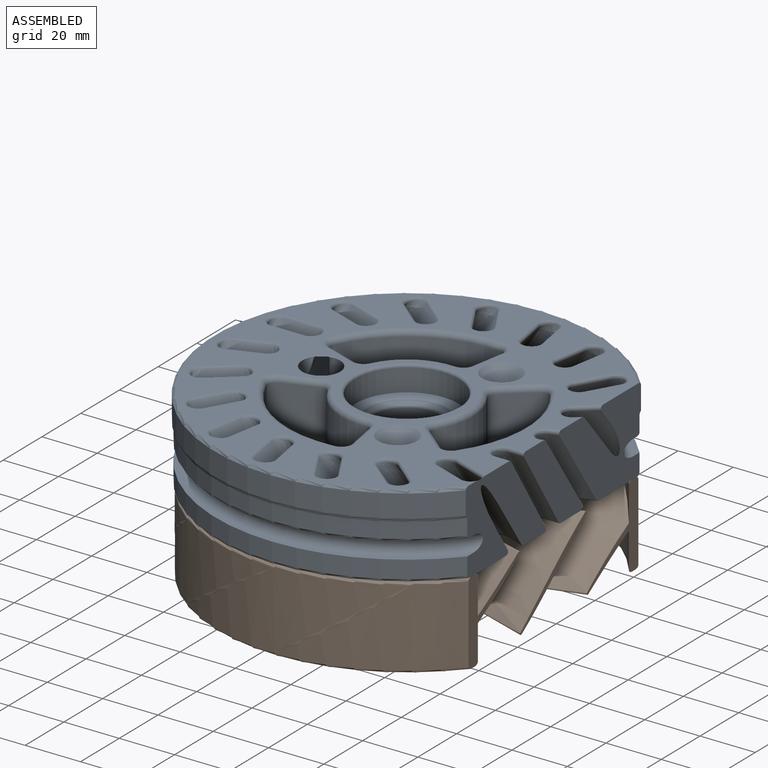
[diagram: assembled view]
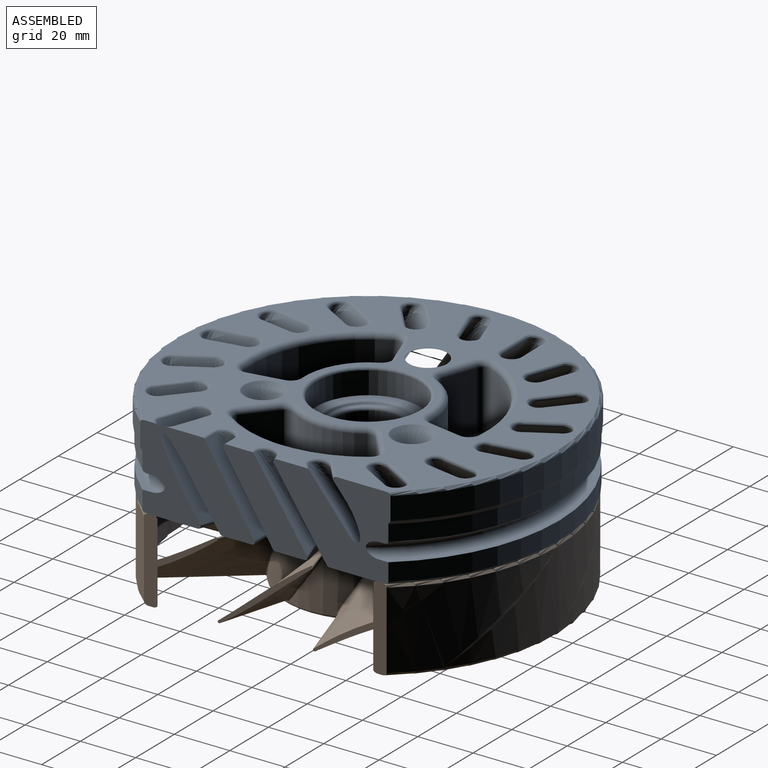
[diagram: assembled view, second angle]
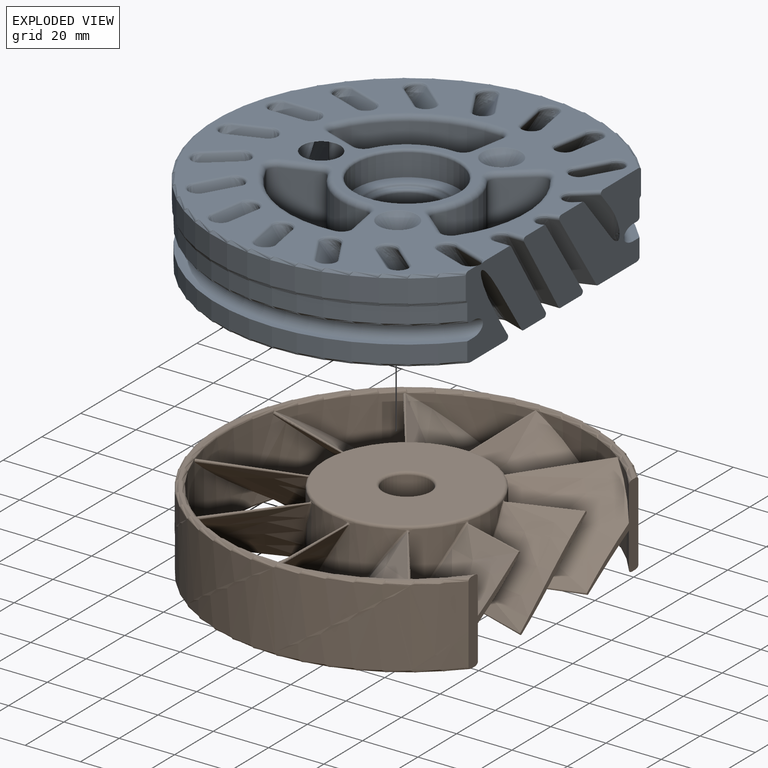
[diagram: exploded view]
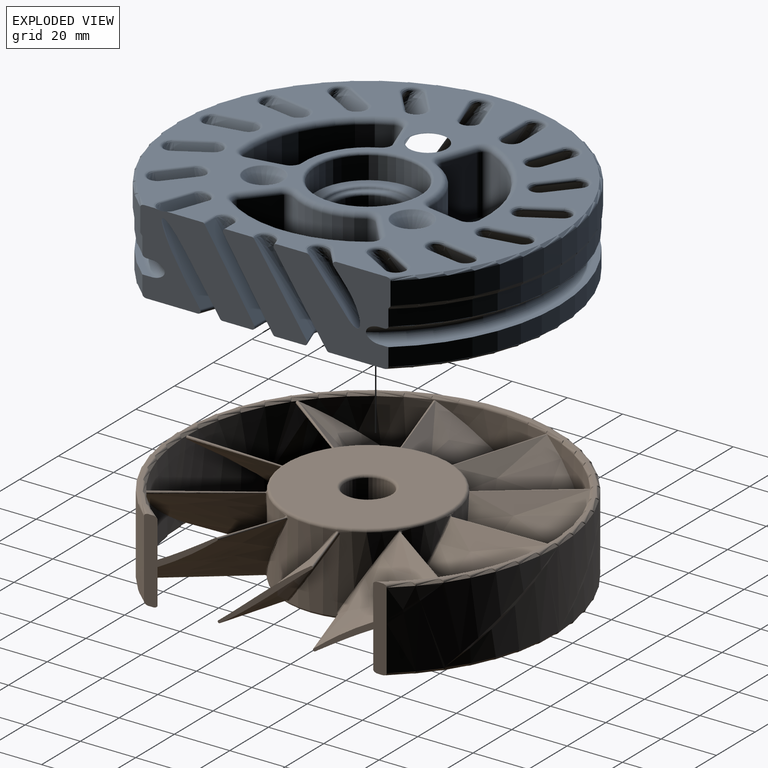
[diagram: exploded view, second angle]
ASSEMBLY  parts=2 mates=2
PART A: 320 faces, bbox 137.9x151.6x31.1 mm
  f0: plane 137.38x121.69mm, normal (0,0,1), area 6280.2mm2, adj f6,f7,f10,f11,f16,f17,f23,f26
  f1: plane 136.38x121.19mm, normal (0,0,-1), area 10557.1mm2, adj f12,f13,f18,f19,f24,f25,f32,f56
  f2: cylinder r=69.69mm len=139.38mm, axis (0,0,-1), area 2760.5mm2, adj f26,f33,f317,f318
  f3: plane 28.28x21.52mm, normal (-0.54,0.65,0.54), area 319.4mm2, adj f5,f7,f132,f136,f317
  f4: plane 28.28x21.52mm, normal (0.54,-0.65,-0.54), area 394.7mm2, adj f5,f6,f132,f135,f317
  f5: extruded ~22.36x16.21mm, area 140.7mm2, adj f3,f4,f137,f317
  f6: cylinder r=1.01mm len=8.07mm, axis (-0.77,-0.64,0), area 20.1mm2, adj f0,f4,f133,f317
  f7: cylinder r=1.01mm len=3.09mm, axis (0.77,0.64,0), area 3mm2, adj f0,f3,f133,f317
  f8: plane 28.28x19.39mm, normal (-0.29,0.79,0.54), area 141mm2, adj f11,f13,f138,f319
  f9: plane 28.28x20.23mm, normal (0.29,-0.79,-0.54), area 223.1mm2, adj f10,f12,f138,f317
  f10: cylinder r=1.01mm len=3.84mm, axis (-0.94,-0.34,0), area 7.7mm2, adj f0,f9,f139,f317
  f11: cylinder r=1.01mm len=1.18mm, axis (0.94,0.34,0), area 0.8mm2, adj f0,f8,f139,f319
  f12: cylinder r=1.01mm len=9.91mm, axis (0.94,0.34,0), area 10.2mm2, adj f1,f9,f140,f317
  f13: cylinder r=1.01mm len=7.37mm, axis (-0.94,-0.34,0), area 15.8mm2, adj f1,f8,f140,f319
  f14: plane 28.28x17.92mm, normal (0,0.84,0.54), area 185.1mm2, adj f17,f19,f141,f318
  f15: plane 28.28x17.92mm, normal (0,-0.84,-0.54), area 185.1mm2, adj f16,f18,f141,f319
  f16: cylinder r=1.01mm len=5.53mm, axis (-1,0,0), area 11.9mm2, adj f0,f15,f142,f319
  f17: cylinder r=1.01mm len=5.53mm, axis (1,0,0), area 5.6mm2, adj f0,f14,f142,f318
  f18: cylinder r=1.01mm len=5.53mm, axis (1,0,0), area 5.6mm2, adj f1,f15,f143,f319
  f19: cylinder r=1.01mm len=5.53mm, axis (-1,0,0), area 11.9mm2, adj f1,f14,f143,f318
  f20: plane 28.28x20.98mm, normal (0.29,0.79,0.54), area 398.1mm2, adj f22,f25,f144,f147,f318
  f21: plane 28.28x20.98mm, normal (-0.29,-0.79,-0.54), area 360.8mm2, adj f22,f24,f144,f145,f318
  f22: extruded ~20.79x18.25mm, area 76.6mm2, adj f20,f21,f23,f318
  f23: bspline ~8.25x6.3mm, area 14.9mm2, adj f0,f22,f145,f147,f318
  f24: cylinder r=1.01mm len=7.75mm, axis (0.94,-0.34,0), area 7.9mm2, adj f1,f21,f148,f318
  f25: cylinder r=1.01mm len=10.4mm, axis (-0.94,0.34,0), area 22.7mm2, adj f1,f20,f148,f318
  f26: torus R=68.69mm, axis (0,0,1), area 532.2mm2, adj f0,f2,f317,f318
  f27: cylinder r=69.19mm len=138.38mm, axis (0,0,1), area 2180.9mm2, adj f28,f32,f317,f318
  f28: plane 138.38x122.19mm, normal (0,0,1), area 688mm2, adj f27,f29,f317,f318
  f29: torus R=67.14mm, axis (0,0,1), area 2944.3mm2, adj f28,f30,f317,f318
  f30: plane 136.38x121.19mm, normal (0,0,-1), area 351.1mm2, adj f29,f34,f317,f318
  f31: cylinder r=69.19mm len=138.38mm, axis (0,0,1), area 1925mm2, adj f34,f35,f317,f318
  f32: torus R=68.19mm, axis (0,0,1), area 530.2mm2, adj f1,f27,f317,f318
  f33: torus R=68.69mm, axis (0,0,-1), area 245.2mm2, adj f2,f35,f317,f318
  f34: torus R=68.19mm, axis (0,0,1), area 530.2mm2, adj f30,f31,f317,f318
  f35: torus R=70.19mm, axis (0,0,-1), area 244.5mm2, adj f31,f33,f317,f318
  f36: torus R=7.21mm, axis (0,0,1), area 17.3mm2, adj f0,f37
  f37: cone r=7mm half-angle=45deg, axis (0,0,1), area 180.9mm2, adj f36,f39
  f38: plane 5x5mm, normal (0,0,1), area 19.6mm2, adj f39
  f39: cylinder r=2.5mm len=22.5mm, axis (0,0,-1), area 353.4mm2, adj f37,f38
  f40: torus R=7.21mm, axis (0,0,1), area 17.3mm2, adj f0,f41
  f41: cone r=7mm half-angle=45deg, axis (0,0,1), area 180.9mm2, adj f40,f43
  f42: plane 5x5mm, normal (0,0,1), area 19.6mm2, adj f43
  f43: cylinder r=2.5mm len=22.5mm, axis (0,0,-1), area 353.4mm2, adj f41,f42
  f44: plane 37.37x37.37mm, normal (0,0,1), area 376.7mm2, adj f45,f239
  f45: cylinder r=18.68mm len=37.37mm, axis (0,0,-1), area 949.8mm2, adj f44,f240
  f46: cylinder r=12.12mm len=24.24mm, axis (0,0,-1), area 1386mm2, adj f237,f238
  f47: plane 26.8x26.8mm, normal (0,0,1), area 23.5mm2, adj f238,f241
  f48: extruded ~29.36x24.66mm, area 294.5mm2, adj f49,f50,f54,f56
  f49: plane 28.28x17.92mm, normal (0,-0.84,0.54), area 405.8mm2, adj f48,f51,f55,f58
  f50: plane 28.28x17.92mm, normal (0,0.84,-0.54), area 405.8mm2, adj f48,f51,f52,f57
  f51: extruded ~29.36x24.66mm, area 294.5mm2, adj f49,f50,f53,f59
  f52: cylinder r=1.01mm len=12.12mm, axis (1,0,0), area 26.1mm2, adj f0,f50,f53,f54
  f53: bspline ~8.45x4.92mm, area 17.4mm2, adj f0,f51,f52,f55
  f54: bspline ~8.45x4.92mm, area 17.4mm2, adj f0,f48,f52,f55
  f55: cylinder r=1.01mm len=12.12mm, axis (-1,0,0), area 12.3mm2, adj f0,f49,f53,f54
  f56: bspline ~8.45x4.92mm, area 17.4mm2, adj f1,f48,f57,f58
  f57: cylinder r=1.01mm len=12.12mm, axis (-1,0,0), area 12.3mm2, adj f1,f50,f56,f59
  f58: cylinder r=1.01mm len=12.12mm, axis (1,0,0), area 26.1mm2, adj f1,f49,f56,f59
  f59: bspline ~8.45x4.92mm, area 17.4mm2, adj f1,f51,f57,f58
  f60: extruded ~29.36x23.36mm, area 294.5mm2, adj f61,f62,f66,f68
  f61: plane 28.28x20.98mm, normal (-0.29,-0.79,0.54), area 405.8mm2, adj f60,f63,f67,f70
  f62: plane 28.28x20.98mm, normal (0.29,0.79,-0.54), area 405.8mm2, adj f60,f63,f64,f69
  f63: extruded ~29.36x23.36mm, area 294.5mm2, adj f61,f62,f65,f71
  f64: cylinder r=1.01mm len=11.73mm, axis (0.94,-0.34,0), area 26.1mm2, adj f0,f62,f65,f66
  f65: bspline ~8.25x6.3mm, area 17.4mm2, adj f0,f63,f64,f67
  f66: bspline ~8.25x6.3mm, area 17.4mm2, adj f0,f60,f64,f67
  f67: cylinder r=1.01mm len=11.68mm, axis (-0.94,0.34,0), area 12.3mm2, adj f0,f61,f65,f66
  f68: bspline ~8.39x6.3mm, area 17.4mm2, adj f1,f60,f69,f70
  f69: cylinder r=1.01mm len=11.68mm, axis (-0.94,0.34,0), area 12.3mm2, adj f1,f62,f68,f71
  f70: cylinder r=1.01mm len=11.73mm, axis (0.94,-0.34,0), area 26.1mm2, adj f1,f61,f68,f71
  f71: bspline ~8.39x6.3mm, area 17.4mm2, adj f1,f63,f69,f70
  f72: extruded ~29.36x19.6mm, area 294.5mm2, adj f73,f74,f78,f80
  f73: plane 28.28x21.52mm, normal (-0.54,-0.65,0.54), area 405.8mm2, adj f72,f75,f79,f82
  f74: plane 28.28x21.52mm, normal (0.54,0.65,-0.54), area 405.8mm2, adj f72,f75,f76,f81
  f75: extruded ~29.36x19.6mm, area 294.5mm2, adj f73,f74,f77,f83
  f76: cylinder r=1.01mm len=9.93mm, axis (0.77,-0.64,0), area 26.1mm2, adj f0,f74,f77,f78
  f77: bspline ~7.88x7.45mm, area 17.4mm2, adj f0,f75,f76,f79
  f78: bspline ~7.88x7.45mm, area 17.4mm2, adj f0,f72,f76,f79
  f79: cylinder r=1.01mm len=9.83mm, axis (-0.77,0.64,0), area 12.3mm2, adj f0,f73,f77,f78
  f80: bspline ~7.89x7.01mm, area 17.4mm2, adj f1,f72,f81,f82
  f81: cylinder r=1.01mm len=9.83mm, axis (-0.77,0.64,0), area 12.3mm2, adj f1,f74,f80,f83
  f82: cylinder r=1.01mm len=9.93mm, axis (0.77,-0.64,0), area 26.1mm2, adj f1,f73,f80,f83
  f83: bspline ~7.89x7.45mm, area 17.4mm2, adj f1,f75,f81,f82
  f84: extruded ~29.36x21.76mm, area 294.5mm2, adj f85,f86,f90,f92
  f85: plane 28.28x21.58mm, normal (-0.73,-0.42,0.54), area 405.8mm2, adj f84,f87,f91,f94
  f86: plane 28.28x21.58mm, normal (0.73,0.42,-0.54), area 405.8mm2, adj f84,f87,f88,f93
  f87: extruded ~29.36x21.76mm, area 294.5mm2, adj f85,f86,f89,f95
  f88: cylinder r=1.01mm len=11mm, axis (0.5,-0.87,0), area 26.1mm2, adj f0,f86,f89,f90
  f89: bspline ~8.2x6.92mm, area 17.4mm2, adj f0,f87,f88,f91
  f90: bspline ~8.2x6.92mm, area 17.4mm2, adj f0,f84,f88,f91
  f91: cylinder r=1.01mm len=10.92mm, axis (-0.5,0.87,0), area 12.3mm2, adj f0,f85,f89,f90
  f92: bspline ~7.96x6.92mm, area 17.4mm2, adj f1,f84,f93,f94
  f93: cylinder r=1.01mm len=10.92mm, axis (-0.5,0.87,0), area 12.3mm2, adj f1,f86,f92,f95
  f94: cylinder r=1.01mm len=11mm, axis (0.5,-0.87,0), area 26.1mm2, adj f1,f85,f92,f95
  f95: bspline ~7.96x6.92mm, area 17.4mm2, adj f1,f87,f93,f94
  f96: extruded ~29.36x24.33mm, area 294.5mm2, adj f97,f98,f102,f104
  f97: plane 28.28x19.75mm, normal (-0.83,-0.15,0.54), area 405.8mm2, adj f96,f99,f103,f106
  f98: plane 28.28x19.75mm, normal (0.83,0.15,-0.54), area 405.8mm2, adj f96,f99,f100,f105
  f99: extruded ~29.36x24.33mm, area 294.5mm2, adj f97,f98,f101,f107
  f100: cylinder r=1.01mm len=12.11mm, axis (0.17,-0.98,0), area 26.1mm2, adj f0,f98,f101,f102
  f101: bspline ~8.45x5.63mm, area 17.4mm2, adj f0,f99,f100,f103
  f102: bspline ~8.45x5.63mm, area 17.4mm2, adj f0,f96,f100,f103
  f103: cylinder r=1.01mm len=12.08mm, axis (-0.17,0.98,0), area 12.3mm2, adj f0,f97,f101,f102
  f104: bspline ~8.44x5.63mm, area 17.4mm2, adj f1,f96,f105,f106
  f105: cylinder r=1.01mm len=12.08mm, axis (-0.17,0.98,0), area 12.3mm2, adj f1,f98,f104,f107
  f106: cylinder r=1.01mm len=12.11mm, axis (0.17,-0.98,0), area 26.1mm2, adj f1,f97,f104,f107
  f107: bspline ~8.42x5.63mm, area 17.4mm2, adj f1,f99,f105,f106
  f108: extruded ~29.36x24.33mm, area 294.5mm2, adj f109,f110,f114,f116
  f109: plane 28.28x19.75mm, normal (-0.83,0.15,0.54), area 405.8mm2, adj f108,f111,f115,f118
  f110: plane 28.28x19.75mm, normal (0.83,-0.15,-0.54), area 405.8mm2, adj f108,f111,f112,f117
  f111: extruded ~29.36x24.33mm, area 294.5mm2, adj f109,f110,f113,f119
  f112: cylinder r=1.01mm len=12.11mm, axis (-0.17,-0.98,0), area 26.1mm2, adj f0,f110,f113,f114
  f113: bspline ~8.44x5.63mm, area 17.4mm2, adj f0,f111,f112,f115
  f114: bspline ~8.42x5.63mm, area 17.4mm2, adj f0,f108,f112,f115
  f115: cylinder r=1.01mm len=12.08mm, axis (0.17,0.98,0), area 12.3mm2, adj f0,f109,f113,f114
  f116: bspline ~8.45x5.63mm, area 17.4mm2, adj f1,f108,f117,f118
  f117: cylinder r=1.01mm len=12.08mm, axis (0.17,0.98,0), area 12.3mm2, adj f1,f110,f116,f119
  f118: cylinder r=1.01mm len=12.11mm, axis (-0.17,-0.98,0), area 26.1mm2, adj f1,f109,f116,f119
  f119: bspline ~8.45x5.63mm, area 17.4mm2, adj f1,f111,f117,f118
  f120: extruded ~29.36x21.76mm, area 294.5mm2, adj f121,f122,f126,f128
  f121: plane 28.28x21.58mm, normal (-0.73,0.42,0.54), area 405.8mm2, adj f120,f123,f127,f130
  f122: plane 28.28x21.58mm, normal (0.73,-0.42,-0.54), area 405.8mm2, adj f120,f123,f124,f129
  f123: extruded ~29.36x21.76mm, area 294.5mm2, adj f121,f122,f125,f131
  f124: cylinder r=1.01mm len=11mm, axis (-0.5,-0.87,0), area 26.1mm2, adj f0,f122,f125,f126
  f125: bspline ~8.2x6.92mm, area 17.4mm2, adj f0,f123,f124,f127
  f126: bspline ~8.2x6.92mm, area 17.4mm2, adj f0,f120,f124,f127
  f127: cylinder r=1.01mm len=10.92mm, axis (0.5,0.87,0), area 12.3mm2, adj f0,f121,f125,f126
  f128: bspline ~8.2x6.92mm, area 17.4mm2, adj f1,f120,f129,f130
  f129: cylinder r=1.01mm len=10.92mm, axis (0.5,0.87,0), area 12.3mm2, adj f1,f122,f128,f131
  f130: cylinder r=1.01mm len=11mm, axis (-0.5,-0.87,0), area 26.1mm2, adj f1,f121,f128,f131
  f131: bspline ~8.2x6.92mm, area 17.4mm2, adj f1,f123,f129,f130
  f132: extruded ~29.36x19.6mm, area 294.5mm2, adj f3,f4,f133,f134
  f133: bspline ~7.89x7.45mm, area 17.4mm2, adj f0,f6,f7,f132
  f134: bspline ~7.54x7.45mm, area 17.4mm2, adj f1,f132,f135,f136
  f135: cylinder r=1.01mm len=9.83mm, axis (0.77,0.64,0), area 12.3mm2, adj f1,f4,f134,f137
  f136: cylinder r=1.01mm len=9.93mm, axis (-0.77,-0.64,0), area 26.1mm2, adj f1,f3,f134,f137
  f137: bspline ~7.54x7.45mm, area 17.4mm2, adj f1,f5,f135,f136
  f138: extruded ~29.36x23.36mm, area 294.5mm2, adj f8,f9,f139,f140
  f139: bspline ~8.39x6.3mm, area 17.4mm2, adj f0,f10,f11,f138
  f140: bspline ~8.25x6.3mm, area 17.4mm2, adj f1,f12,f13,f138
  f141: extruded ~29.36x24.66mm, area 294.5mm2, adj f14,f15,f142,f143
  f142: bspline ~8.45x4.92mm, area 17.4mm2, adj f0,f16,f17,f141
  f143: bspline ~8.45x4.92mm, area 17.4mm2, adj f1,f18,f19,f141
  f144: extruded ~29.36x23.36mm, area 294.5mm2, adj f20,f21,f146,f148
  f145: cylinder r=1.01mm len=11.73mm, axis (-0.94,0.34,0), area 26.1mm2, adj f0,f21,f23,f146
  f146: bspline ~8.25x6.3mm, area 17.4mm2, adj f0,f144,f145,f147
  f147: cylinder r=1.01mm len=11.68mm, axis (0.94,-0.34,0), area 12.3mm2, adj f0,f20,f23,f146
  f148: bspline ~8.39x6.3mm, area 17.4mm2, adj f1,f24,f25,f144
  f149: extruded ~29.36x19.6mm, area 294.5mm2, adj f150,f151,f155,f157
  f150: plane 28.28x21.52mm, normal (0.54,0.65,0.54), area 405.8mm2, adj f149,f152,f156,f159
  f151: plane 28.28x21.52mm, normal (-0.54,-0.65,-0.54), area 405.8mm2, adj f149,f152,f153,f158
  f152: extruded ~29.36x19.6mm, area 294.5mm2, adj f150,f151,f154,f160
  f153: cylinder r=1.01mm len=9.93mm, axis (-0.77,0.64,0), area 26.1mm2, adj f0,f151,f154,f155
  f154: bspline ~7.88x7.45mm, area 17.4mm2, adj f0,f152,f153,f156
  f155: bspline ~7.88x7.45mm, area 17.4mm2, adj f0,f149,f153,f156
  f156: cylinder r=1.01mm len=9.83mm, axis (0.77,-0.64,0), area 12.3mm2, adj f0,f150,f154,f155
  f157: bspline ~7.89x7.01mm, area 17.4mm2, adj f1,f149,f158,f159
  f158: cylinder r=1.01mm len=9.83mm, axis (0.77,-0.64,0), area 12.3mm2, adj f1,f151,f157,f160
  f159: cylinder r=1.01mm len=9.93mm, axis (-0.77,0.64,0), area 26.1mm2, adj f1,f150,f157,f160
  f160: bspline ~7.89x7.45mm, area 17.4mm2, adj f1,f152,f158,f159
  f161: extruded ~29.36x21.76mm, area 294.5mm2, adj f162,f163,f167,f169
  f162: plane 28.28x21.58mm, normal (0.73,0.42,0.54), area 405.8mm2, adj f161,f164,f168,f171
  f163: plane 28.28x21.58mm, normal (-0.73,-0.42,-0.54), area 405.8mm2, adj f161,f164,f165,f170
  f164: extruded ~29.36x21.76mm, area 294.5mm2, adj f162,f163,f166,f172
  f165: cylinder r=1.01mm len=11mm, axis (-0.5,0.87,0), area 26.1mm2, adj f0,f163,f166,f167
  f166: bspline ~8.2x6.92mm, area 17.4mm2, adj f0,f164,f165,f168
  f167: bspline ~8.2x6.92mm, area 17.4mm2, adj f0,f161,f165,f168
  f168: cylinder r=1.01mm len=10.92mm, axis (0.5,-0.87,0), area 12.3mm2, adj f0,f162,f166,f167
  f169: bspline ~8.2x6.92mm, area 17.4mm2, adj f1,f161,f170,f171
  f170: cylinder r=1.01mm len=10.92mm, axis (0.5,-0.87,0), area 12.3mm2, adj f1,f163,f169,f172
  f171: cylinder r=1.01mm len=11mm, axis (-0.5,0.87,0), area 26.1mm2, adj f1,f162,f169,f172
  f172: bspline ~8.2x6.92mm, area 17.4mm2, adj f1,f164,f170,f171
  f173: extruded ~29.36x24.33mm, area 294.5mm2, adj f174,f175,f179,f181
  f174: plane 28.28x19.75mm, normal (0.83,0.15,0.54), area 405.8mm2, adj f173,f176,f180,f183
  f175: plane 28.28x19.75mm, normal (-0.83,-0.15,-0.54), area 405.8mm2, adj f173,f176,f177,f182
  f176: extruded ~29.36x24.33mm, area 294.5mm2, adj f174,f175,f178,f184
  f177: cylinder r=1.01mm len=12.11mm, axis (-0.17,0.98,0), area 26.1mm2, adj f0,f175,f178,f179
  f178: bspline ~8.45x5.63mm, area 17.4mm2, adj f0,f176,f177,f180
  f179: bspline ~8.45x5.63mm, area 17.4mm2, adj f0,f173,f177,f180
  f180: cylinder r=1.01mm len=12.08mm, axis (0.17,-0.98,0), area 12.3mm2, adj f0,f174,f178,f179
  f181: bspline ~8.44x5.63mm, area 17.4mm2, adj f1,f173,f182,f183
  f182: cylinder r=1.01mm len=12.08mm, axis (0.17,-0.98,0), area 12.3mm2, adj f1,f175,f181,f184
  f183: cylinder r=1.01mm len=12.11mm, axis (-0.17,0.98,0), area 26.1mm2, adj f1,f174,f181,f184
  f184: bspline ~8.42x5.63mm, area 17.4mm2, adj f1,f176,f182,f183
  f185: extruded ~29.36x24.33mm, area 294.5mm2, adj f186,f187,f191,f193
  f186: plane 28.28x19.75mm, normal (0.83,-0.15,0.54), area 405.8mm2, adj f185,f188,f192,f195
  f187: plane 28.28x19.75mm, normal (-0.83,0.15,-0.54), area 405.8mm2, adj f185,f188,f189,f194
  f188: extruded ~29.36x24.33mm, area 294.5mm2, adj f186,f187,f190,f196
  f189: cylinder r=1.01mm len=12.11mm, axis (0.17,0.98,0), area 26.1mm2, adj f0,f187,f190,f191
  f190: bspline ~8.44x5.63mm, area 17.4mm2, adj f0,f188,f189,f192
  f191: bspline ~8.44x5.63mm, area 17.4mm2, adj f0,f185,f189,f192
  f192: cylinder r=1.01mm len=12.08mm, axis (-0.17,-0.98,0), area 12.3mm2, adj f0,f186,f190,f191
  f193: bspline ~8.45x5.63mm, area 17.4mm2, adj f1,f185,f194,f195
  f194: cylinder r=1.01mm len=12.08mm, axis (-0.17,-0.98,0), area 12.3mm2, adj f1,f187,f193,f196
  f195: cylinder r=1.01mm len=12.11mm, axis (0.17,0.98,0), area 26.1mm2, adj f1,f186,f193,f196
  f196: bspline ~8.45x5.63mm, area 17.4mm2, adj f1,f188,f194,f195
  f197: extruded ~29.36x21.76mm, area 294.5mm2, adj f198,f199,f203,f205
  f198: plane 28.28x21.58mm, normal (0.73,-0.42,0.54), area 405.8mm2, adj f197,f200,f204,f207
  f199: plane 28.28x21.58mm, normal (-0.73,0.42,-0.54), area 405.8mm2, adj f197,f200,f201,f206
  f200: extruded ~29.36x21.76mm, area 294.5mm2, adj f198,f199,f202,f208
  f201: cylinder r=1.01mm len=11mm, axis (0.5,0.87,0), area 26.1mm2, adj f0,f199,f202,f203
  f202: bspline ~7.96x6.92mm, area 17.4mm2, adj f0,f200,f201,f204
  f203: bspline ~7.96x6.92mm, area 17.4mm2, adj f0,f197,f201,f204
  f204: cylinder r=1.01mm len=10.92mm, axis (-0.5,-0.87,0), area 12.3mm2, adj f0,f198,f202,f203
  f205: bspline ~8.2x6.92mm, area 17.4mm2, adj f1,f197,f206,f207
  f206: cylinder r=1.01mm len=10.92mm, axis (-0.5,-0.87,0), area 12.3mm2, adj f1,f199,f205,f208
  f207: cylinder r=1.01mm len=11mm, axis (0.5,0.87,0), area 26.1mm2, adj f1,f198,f205,f208
  f208: bspline ~8.2x6.92mm, area 17.4mm2, adj f1,f200,f206,f207
  f209: extruded ~29.36x19.6mm, area 294.5mm2, adj f210,f211,f215,f217
  f210: plane 28.28x21.52mm, normal (0.54,-0.65,0.54), area 405.8mm2, adj f209,f212,f216,f219
  f211: plane 28.28x21.52mm, normal (-0.54,0.65,-0.54), area 405.8mm2, adj f209,f212,f213,f218
  f212: extruded ~29.36x19.6mm, area 294.5mm2, adj f210,f211,f214,f220
  f213: cylinder r=1.01mm len=9.93mm, axis (0.77,0.64,0), area 26.1mm2, adj f0,f211,f214,f215
  f214: bspline ~7.89x7.45mm, area 17.4mm2, adj f0,f212,f213,f216
  f215: bspline ~7.89x7.45mm, area 17.4mm2, adj f0,f209,f213,f216
  f216: cylinder r=1.01mm len=9.83mm, axis (-0.77,-0.64,0), area 12.3mm2, adj f0,f210,f214,f215
  f217: bspline ~7.54x7.45mm, area 17.4mm2, adj f1,f209,f218,f219
  f218: cylinder r=1.01mm len=9.83mm, axis (-0.77,-0.64,0), area 12.3mm2, adj f1,f211,f217,f220
  f219: cylinder r=1.01mm len=9.93mm, axis (0.77,0.64,0), area 26.1mm2, adj f1,f210,f217,f220
  f220: bspline ~7.54x7.45mm, area 17.4mm2, adj f1,f212,f218,f219
  f221: extruded ~29.36x23.36mm, area 294.5mm2, adj f222,f223,f227,f229
  f222: plane 28.28x20.98mm, normal (0.29,-0.79,0.54), area 405.8mm2, adj f221,f224,f228,f231
  f223: plane 28.28x20.98mm, normal (-0.29,0.79,-0.54), area 405.8mm2, adj f221,f224,f225,f230
  f224: extruded ~29.36x23.36mm, area 294.5mm2, adj f222,f223,f226,f232
  f225: cylinder r=1.01mm len=11.73mm, axis (0.94,0.34,0), area 26.1mm2, adj f0,f223,f226,f227
  f226: bspline ~8.39x6.3mm, area 17.4mm2, adj f0,f224,f225,f228
  f227: bspline ~8.39x6.3mm, area 17.4mm2, adj f0,f221,f225,f228
  f228: cylinder r=1.01mm len=11.68mm, axis (-0.94,-0.34,0), area 12.3mm2, adj f0,f222,f226,f227
  f229: bspline ~8.39x6.3mm, area 17.4mm2, adj f1,f221,f230,f231
  f230: cylinder r=1.01mm len=11.68mm, axis (-0.94,-0.34,0), area 12.3mm2, adj f1,f223,f229,f232
  f231: cylinder r=1.01mm len=11.73mm, axis (0.94,0.34,0), area 26.1mm2, adj f1,f222,f229,f232
  f232: bspline ~8.39x6.3mm, area 17.4mm2, adj f1,f224,f230,f231
  f233: plane 5x5mm, normal (0,0,1), area 19.6mm2, adj f234
  f234: cylinder r=2.5mm len=22.5mm, axis (0,0,-1), area 353.4mm2, adj f233,f235
  f235: cone r=7mm half-angle=45deg, axis (0,0,1), area 180.9mm2, adj f234,f236
  f236: torus R=7.21mm, axis (0,0,1), area 17.3mm2, adj f0,f235
  f237: torus R=13.12mm, axis (0,0,1), area 123.2mm2, adj f1,f46
  f238: torus R=13.12mm, axis (0,0,-1), area 123.2mm2, adj f46,f47
  f239: torus R=15.14mm, axis (0,0,-1), area 97mm2, adj f44,f241
  f240: torus R=19.69mm, axis (0,0,1), area 188mm2, adj f0,f45
  f241: torus R=13.4mm, axis (0,0,1), area 91.8mm2, adj f47,f239
  f242: plane 48.04x19.18mm, normal (0,0,1), area 621mm2, adj f309,f310,f311,f312,f313,f314,f315,f316
  f243: plane 21.3x9.78mm, normal (0.64,-0.77,0), area 271.8mm2, adj f249,f250,f279,f315
  f244: cylinder r=42.5mm len=49.53mm, axis (0,0,1), area 1126.3mm2, adj f247,f249,f283,f314
  f245: cylinder r=23.79mm len=26.31mm, axis (0,0,1), area 593.9mm2, adj f248,f250,f278,f311
  f246: plane 21.3x9.78mm, normal (0.64,0.77,0), area 271.8mm2, adj f247,f248,f282,f310
  f247: cylinder r=3mm len=21.3mm, axis (0,0,1), area 105.2mm2, adj f244,f246,f284,f312
  f248: cylinder r=3mm len=21.3mm, axis (0,0,1), area 93.2mm2, adj f245,f246,f280,f309
  f249: cylinder r=3mm len=21.3mm, axis (0,0,1), area 105.2mm2, adj f243,f244,f281,f316
  f250: cylinder r=3mm len=21.3mm, axis (0,0,1), area 93.2mm2, adj f243,f245,f277,f313
  f251: plane 41.87x29.58mm, normal (0,0,1), area 621mm2, adj f293,f294,f295,f296,f297,f298,f299,f300
  f252: plane 21.3x12.57mm, normal (-0.98,-0.17,0), area 271.8mm2, adj f258,f259,f290,f296
  f253: cylinder r=42.5mm len=42.9mm, axis (0,0,1), area 1126.3mm2, adj f256,f258,f286,f300
  f254: cylinder r=23.79mm len=22.79mm, axis (0,0,1), area 593.9mm2, adj f257,f259,f291,f293
  f255: plane 21.3x11.99mm, normal (0.34,-0.94,0), area 271.8mm2, adj f256,f257,f287,f297
  f256: cylinder r=3mm len=21.3mm, axis (0,0,1), area 105.2mm2, adj f253,f255,f285,f299
  f257: cylinder r=3mm len=21.3mm, axis (0,0,1), area 93.2mm2, adj f254,f255,f289,f295
  f258: cylinder r=3mm len=21.3mm, axis (0,0,1), area 105.2mm2, adj f252,f253,f288,f298
  f259: cylinder r=3mm len=21.3mm, axis (0,0,1), area 93.2mm2, adj f252,f254,f292,f294
  f260: plane 41.87x29.58mm, normal (0,0,1), area 621mm2, adj f301,f302,f303,f304,f305,f306,f307,f308
  f261: plane 21.3x11.99mm, normal (0.34,0.94,0), area 271.8mm2, adj f267,f268,f271,f302
  f262: cylinder r=42.5mm len=42.9mm, axis (0,0,1), area 1126.3mm2, adj f265,f267,f275,f303
  f263: cylinder r=23.79mm len=22.79mm, axis (0,0,1), area 593.9mm2, adj f266,f268,f270,f306
  f264: plane 21.3x12.57mm, normal (-0.98,0.17,0), area 271.8mm2, adj f265,f266,f274,f307
  f265: cylinder r=3mm len=21.3mm, axis (0,0,1), area 105.2mm2, adj f262,f264,f276,f305
  f266: cylinder r=3mm len=21.3mm, axis (0,0,1), area 93.2mm2, adj f263,f264,f272,f308
  f267: cylinder r=3mm len=21.3mm, axis (0,0,1), area 105.2mm2, adj f261,f262,f273,f301
  f268: cylinder r=3mm len=21.3mm, axis (0,0,1), area 93.2mm2, adj f261,f263,f269,f304
  f269: torus R=5mm, axis (0,0,1), area 17.1mm2, adj f0,f268,f270,f271
  f270: torus R=21.79mm, axis (0,0,1), area 84.9mm2, adj f0,f263,f269,f272
  f271: cylinder r=2mm len=12.68mm, axis (-0.94,0.34,0), area 40.1mm2, adj f0,f261,f269,f273
  f272: torus R=5mm, axis (0,0,1), area 17.1mm2, adj f0,f266,f270,f274
  f273: torus R=5mm, axis (0,0,1), area 19.3mm2, adj f0,f267,f271,f275
  f274: cylinder r=2mm len=12.92mm, axis (-0.17,-0.98,0), area 40.1mm2, adj f0,f264,f272,f276
  f275: torus R=44.5mm, axis (0,0,1), area 169mm2, adj f0,f262,f273,f276
  f276: torus R=5mm, axis (0,0,1), area 19.3mm2, adj f0,f265,f274,f275
  f277: torus R=5mm, axis (0,0,1), area 17.1mm2, adj f0,f250,f278,f279
  f278: torus R=21.79mm, axis (0,0,1), area 84.9mm2, adj f0,f245,f277,f280
  f279: cylinder r=2mm len=11.06mm, axis (0.77,0.64,0), area 40.1mm2, adj f0,f243,f277,f281
  f280: torus R=5mm, axis (0,0,1), area 17.1mm2, adj f0,f248,f278,f282
  f281: torus R=5mm, axis (0,0,1), area 19.3mm2, adj f0,f249,f279,f283
  f282: cylinder r=2mm len=11.06mm, axis (-0.77,0.64,0), area 40.1mm2, adj f0,f246,f280,f284
  f283: torus R=44.5mm, axis (0,0,1), area 169mm2, adj f0,f244,f281,f284
  f284: torus R=5mm, axis (0,0,1), area 19.3mm2, adj f0,f247,f282,f283
  f285: torus R=5mm, axis (0,0,1), area 19.3mm2, adj f0,f256,f286,f287
  f286: torus R=44.5mm, axis (0,0,1), area 169mm2, adj f0,f253,f285,f288
  f287: cylinder r=2mm len=12.68mm, axis (0.94,0.34,0), area 40.1mm2, adj f0,f255,f285,f289
  f288: torus R=5mm, axis (0,0,1), area 19.3mm2, adj f0,f258,f286,f290
  f289: torus R=5mm, axis (0,0,1), area 17.1mm2, adj f0,f257,f287,f291
  f290: cylinder r=2mm len=12.92mm, axis (0.17,-0.98,0), area 40.1mm2, adj f0,f252,f288,f292
  f291: torus R=21.79mm, axis (0,0,1), area 84.9mm2, adj f0,f254,f289,f292
  f292: torus R=5mm, axis (0,0,1), area 17.1mm2, adj f0,f259,f290,f291
  f293: torus R=25.79mm, axis (0,0,1), area 90.3mm2, adj f251,f254,f294,f295
  f294: torus R=1mm, axis (0,0,1), area 10.4mm2, adj f251,f259,f293,f296
  f295: torus R=1mm, axis (0,0,1), area 10.4mm2, adj f251,f257,f293,f297
  f296: cylinder r=2mm len=12.92mm, axis (-0.17,0.98,0), area 40.1mm2, adj f251,f252,f294,f298
  f297: cylinder r=2mm len=12.68mm, axis (-0.94,-0.34,0), area 40.1mm2, adj f251,f255,f295,f299
  f298: torus R=1mm, axis (0,0,1), area 11.8mm2, adj f251,f258,f296,f300
  f299: torus R=1mm, axis (0,0,1), area 11.8mm2, adj f251,f256,f297,f300
  f300: torus R=40.5mm, axis (0,0,1), area 163.3mm2, adj f251,f253,f298,f299
  f301: torus R=1mm, axis (0,0,1), area 11.8mm2, adj f260,f267,f302,f303
  f302: cylinder r=2mm len=12.68mm, axis (0.94,-0.34,0), area 40.1mm2, adj f260,f261,f301,f304
  f303: torus R=40.5mm, axis (0,0,1), area 163.3mm2, adj f260,f262,f301,f305
  f304: torus R=1mm, axis (0,0,1), area 10.4mm2, adj f260,f268,f302,f306
  f305: torus R=1mm, axis (0,0,1), area 11.8mm2, adj f260,f265,f303,f307
  f306: torus R=25.79mm, axis (0,0,1), area 90.3mm2, adj f260,f263,f304,f308
  f307: cylinder r=2mm len=12.92mm, axis (0.17,0.98,0), area 40.1mm2, adj f260,f264,f305,f308
  f308: torus R=1mm, axis (0,0,1), area 10.4mm2, adj f260,f266,f306,f307
  f309: torus R=1mm, axis (0,0,1), area 10.4mm2, adj f242,f248,f310,f311
  f310: cylinder r=2mm len=11.06mm, axis (0.77,-0.64,0), area 40.1mm2, adj f242,f246,f309,f312
  f311: torus R=25.79mm, axis (0,0,1), area 90.3mm2, adj f242,f245,f309,f313
  f312: torus R=1mm, axis (0,0,1), area 11.8mm2, adj f242,f247,f310,f314
  f313: torus R=1mm, axis (0,0,1), area 10.4mm2, adj f242,f250,f311,f315
  f314: torus R=40.5mm, axis (0,0,1), area 163.3mm2, adj f242,f244,f312,f316
  f315: cylinder r=2mm len=11.06mm, axis (-0.77,-0.64,0), area 40.1mm2, adj f242,f243,f313,f316
  f316: torus R=1mm, axis (0,0,1), area 11.8mm2, adj f242,f249,f314,f315
  f317: plane 43.07x31.08mm, normal (1,0,0), area 807.3mm2, adj f0,f1,f2,f3,f4,f5,f6,f7
  f318: plane 41.81x30.72mm, normal (1,0,0), area 773mm2, adj f0,f1,f2,f14,f17,f19,f20,f21
  f319: plane 30.87x30.64mm, normal (1,0,0), area 374.6mm2, adj f0,f1,f8,f11,f13,f15,f16,f18
PART B: 100 faces, bbox 148.4x154.1x39.8 mm
  f0: bspline ~38.26x13.39mm, area 29.4mm2, adj f2,f3,f77,f99
  f1: bspline ~38.26x13.39mm, area 29.4mm2, adj f2,f3,f79,f99
  f2: bspline ~42.52x40.28mm, area 940.8mm2, adj f0,f1,f80,f99
  f3: bspline ~42.52x40.28mm, area 940.8mm2, adj f0,f1,f78,f99
  f4: bspline ~38.3x13.32mm, area 29.8mm2, adj f5,f6,f81,f98
  f5: bspline ~47.8x46.39mm, area 1295.3mm2, adj f4,f13,f36,f82,f98
  f6: bspline ~47.8x46.39mm, area 1286.7mm2, adj f4,f13,f36,f83,f98
  f7: bspline ~38.3x13.32mm, area 29.8mm2, adj f8,f9,f75,f97
  f8: bspline ~47.8x46.39mm, area 1286.7mm2, adj f7,f13,f41,f76,f97
  f9: bspline ~47.8x46.39mm, area 1295.3mm2, adj f7,f13,f41,f74,f97
  f10: cylinder r=68.8mm len=137.6mm, axis (0,0,-1), area 9151.7mm2, adj f14,f15,f16,f19,f54,f55,f56,f57
  f11: plane 135.6x120.8mm, normal (0,0,1), area 333.5mm2, adj f18,f19,f97,f98
  f12: plane 135.6x120.8mm, normal (0,0,-1), area 333.5mm2, adj f16,f17,f97,f98
  f13: cylinder r=65.8mm len=131.6mm, axis (0,0,-1), area 8793.6mm2, adj f5,f6,f8,f9,f17,f18,f20,f21
  f14: cylinder r=68.74mm len=12.17mm, axis (0,0,-1), area 13.3mm2, adj f10,f97
  f15: cylinder r=68.74mm len=12.17mm, axis (0,0,-1), area 13.3mm2, adj f10,f98
  f16: torus R=67.8mm, axis (0,0,-1), area 528.7mm2, adj f10,f12,f97,f98
  f17: torus R=66.8mm, axis (0,0,-1), area 519.1mm2, adj f12,f13,f97,f98
  f18: torus R=66.8mm, axis (0,0,-1), area 519.1mm2, adj f11,f13,f97,f98
  f19: torus R=67.8mm, axis (0,0,-1), area 528.7mm2, adj f10,f11,f97,f98
  f20: bspline ~38.26x13.39mm, area 45.3mm2, adj f13,f22,f23,f65
  f21: bspline ~38.26x13.39mm, area 45.3mm2, adj f13,f22,f23,f68
  f22: bspline ~42.52x40.28mm, area 1409.4mm2, adj f13,f20,f21,f66
  f23: bspline ~42.52x40.28mm, area 1409.4mm2, adj f13,f20,f21,f67
  f24: bspline ~32.88x24.36mm, area 45.3mm2, adj f13,f26,f27,f85
  f25: bspline ~39.91x1.49mm, area 45.3mm2, adj f13,f26,f27,f88
  f26: bspline ~44.53x40.44mm, area 1409.4mm2, adj f13,f24,f25,f86
  f27: bspline ~44.53x40.44mm, area 1409.4mm2, adj f13,f24,f25,f87
  f28: bspline ~39.91x1.49mm, area 45.3mm2, adj f13,f30,f31,f89
  f29: bspline ~32.88x24.36mm, area 45.3mm2, adj f13,f30,f31,f91
  f30: bspline ~44.53x40.44mm, area 1409.4mm2, adj f13,f28,f29,f92
  f31: bspline ~44.53x40.44mm, area 1409.4mm2, adj f13,f28,f29,f90
  f32: bspline ~32.94x24.29mm, area 45.3mm2, adj f13,f34,f35,f61
  f33: bspline ~38.3x13.32mm, area 45.3mm2, adj f13,f34,f35,f64
  f34: bspline ~47.8x46.39mm, area 1409.4mm2, adj f13,f32,f33,f62
  f35: bspline ~47.8x46.39mm, area 1409.4mm2, adj f13,f32,f33,f63
  f36: bspline ~32.94x24.29mm, area 45.3mm2, adj f5,f6,f13,f84
  f37: bspline ~39.91x1.49mm, area 45.3mm2, adj f13,f39,f40,f69
  f38: bspline ~32.88x24.36mm, area 45.3mm2, adj f13,f39,f40,f72
  f39: bspline ~44.53x40.44mm, area 1409.4mm2, adj f13,f37,f38,f70
  f40: bspline ~44.53x40.44mm, area 1409.4mm2, adj f13,f37,f38,f71
  f41: bspline ~32.94x24.29mm, area 45.3mm2, adj f8,f9,f13,f73
  f42: bspline ~38.47x13.37mm, area 45.7mm2, adj f13,f44,f45,f50
  f43: bspline ~33.09x24.39mm, area 45.7mm2, adj f13,f44,f45,f50
  f44: bspline ~48.03x46.51mm, area 1425.4mm2, adj f13,f42,f43,f50
  f45: bspline ~48.03x46.51mm, area 1425.4mm2, adj f13,f42,f43,f50
  f46: bspline ~29.44x21.45mm, area 45.7mm2, adj f13,f48,f49,f50
  f47: bspline ~42.65x1.49mm, area 45.7mm2, adj f13,f48,f49,f50
  f48: bspline ~44.84x40.44mm, area 1425.4mm2, adj f13,f46,f47,f50
  f49: bspline ~44.84x40.44mm, area 1425.4mm2, adj f13,f46,f47,f50
  f50: cylinder r=30mm len=60mm, axis (0,0,-1), area 4585.2mm2, adj f42,f43,f44,f45,f46,f47,f48,f49
  f51: plane 58x58mm, normal (0,0,1), area 2370.4mm2, adj f94,f96
  f52: plane 58x58mm, normal (0,0,-1), area 2370.4mm2, adj f93,f95
  f53: cylinder r=8.3mm len=28mm, axis (0,0,-1), area 1460.2mm2, adj f93,f94
  f54: cylinder r=68.74mm len=39.57mm, axis (0,0,-1), area 37.5mm2, adj f10
  f55: cylinder r=68.74mm len=33.66mm, axis (0,0,-1), area 37.5mm2, adj f10
  f56: cylinder r=68.74mm len=39.57mm, axis (0,0,-1), area 37.5mm2, adj f10
  f57: cylinder r=68.74mm len=33.66mm, axis (0,0,-1), area 37.5mm2, adj f10
  f58: cylinder r=68.74mm len=39.57mm, axis (0,0,-1), area 37.5mm2, adj f10
  f59: cylinder r=68.74mm len=39.57mm, axis (0,0,-1), area 37.5mm2, adj f10
  f60: cylinder r=68.74mm len=41.6mm, axis (0,0,-1), area 37.4mm2, adj f10
  f61: bspline ~1.33x1.13mm, area 1.1mm2, adj f32,f50,f62,f63
  f62: bspline ~31.17x18.12mm, area 24.9mm2, adj f34,f50,f61,f64
  f63: bspline ~31.17x16.55mm, area 24.9mm2, adj f35,f50,f61,f64
  f64: bspline ~1.33x1.33mm, area 1.1mm2, adj f33,f50,f62,f63
  f65: bspline ~1.33x1.33mm, area 1.1mm2, adj f20,f50,f66,f67
  f66: bspline ~31.17x21.19mm, area 24.9mm2, adj f22,f50,f65,f68
  f67: bspline ~31.17x21.19mm, area 24.9mm2, adj f23,f50,f65,f68
  f68: bspline ~1.33x1.33mm, area 1.1mm2, adj f21,f50,f66,f67
  f69: bspline ~1.4x1.33mm, area 1.1mm2, adj f37,f50,f70,f71
  f70: bspline ~31.76x20.16mm, area 24.9mm2, adj f39,f50,f69,f72
  f71: bspline ~31.17x20.67mm, area 24.9mm2, adj f40,f50,f69,f72
  f72: bspline ~1.33x1.14mm, area 1.1mm2, adj f38,f50,f70,f71
  f73: bspline ~1.33x1.13mm, area 1.1mm2, adj f41,f50,f74,f76
  f74: bspline ~31.17x16.55mm, area 24.9mm2, adj f9,f50,f73,f75
  f75: bspline ~1.33x1.33mm, area 1.1mm2, adj f7,f50,f74,f76
  f76: bspline ~31.76x18.41mm, area 24.9mm2, adj f8,f50,f73,f75
  f77: bspline ~1.33x1.33mm, area 1.1mm2, adj f0,f50,f78,f80
  f78: bspline ~31.17x21.19mm, area 24.9mm2, adj f3,f50,f77,f79
  f79: bspline ~1.33x1.33mm, area 1.1mm2, adj f1,f50,f78,f80
  f80: bspline ~31.17x21.19mm, area 24.9mm2, adj f2,f50,f77,f79
  f81: bspline ~1.33x1.33mm, area 1.1mm2, adj f4,f50,f82,f83
  f82: bspline ~31.17x16.55mm, area 24.9mm2, adj f5,f50,f81,f84
  f83: bspline ~31.17x18.12mm, area 24.9mm2, adj f6,f50,f81,f84
  f84: bspline ~1.33x1.13mm, area 1.1mm2, adj f36,f50,f82,f83
  f85: bspline ~1.33x1.14mm, area 1.1mm2, adj f24,f50,f86,f87
  f86: bspline ~31.17x20.67mm, area 24.9mm2, adj f26,f50,f85,f88
  f87: bspline ~31.17x19.67mm, area 24.9mm2, adj f27,f50,f85,f88
  f88: bspline ~1.4x1.33mm, area 1.1mm2, adj f25,f50,f86,f87
  f89: bspline ~1.4x1.33mm, area 1.1mm2, adj f28,f50,f90,f92
  f90: bspline ~31.17x20.67mm, area 24.9mm2, adj f31,f50,f89,f91
  f91: bspline ~1.33x1.14mm, area 1.1mm2, adj f29,f50,f90,f92
  f92: bspline ~31.76x20.16mm, area 24.9mm2, adj f30,f50,f89,f91
  f93: torus R=9.3mm, axis (0,0,-1), area 85.5mm2, adj f52,f53
  f94: torus R=9.3mm, axis (0,0,-1), area 85.5mm2, adj f51,f53
  f95: torus R=29mm, axis (0,0,-1), area 292.5mm2, adj f50,f52
  f96: torus R=29mm, axis (0,0,-1), area 292.5mm2, adj f50,f51
  f97: plane 32.33x28.98mm, normal (1,0,0), area 188.7mm2, adj f7,f8,f9,f10,f11,f12,f13,f14
  f98: plane 32.33x28.98mm, normal (1,0,0), area 188.7mm2, adj f4,f5,f6,f10,f11,f12,f13,f15
  f99: plane 39.6x32.81mm, normal (1,0,0), area 68.1mm2, adj f0,f1,f2,f3
PLACE A t=(0,0,-5.05)mm
PLACE B t=(0,0,-35.2)mm
MATE revolute A.f29 <-> B.f10  axis (0,0,-1) through (0,0,-20.2)mm
MATE planar A.f1 <-> B.f10  axis (0,0,-1) through (-3.96,0,-20.2)mm
